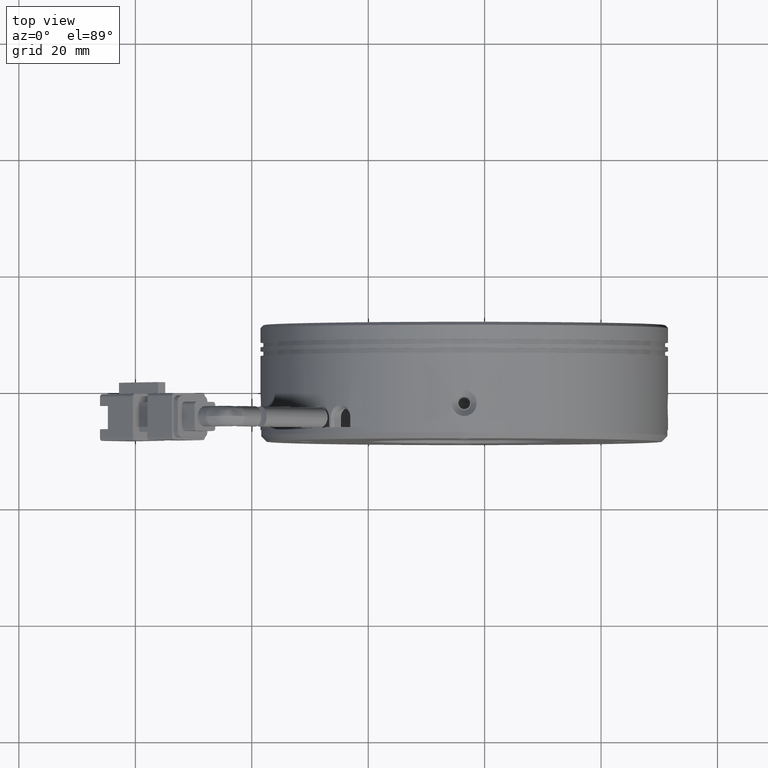
[diagram: clean part render]
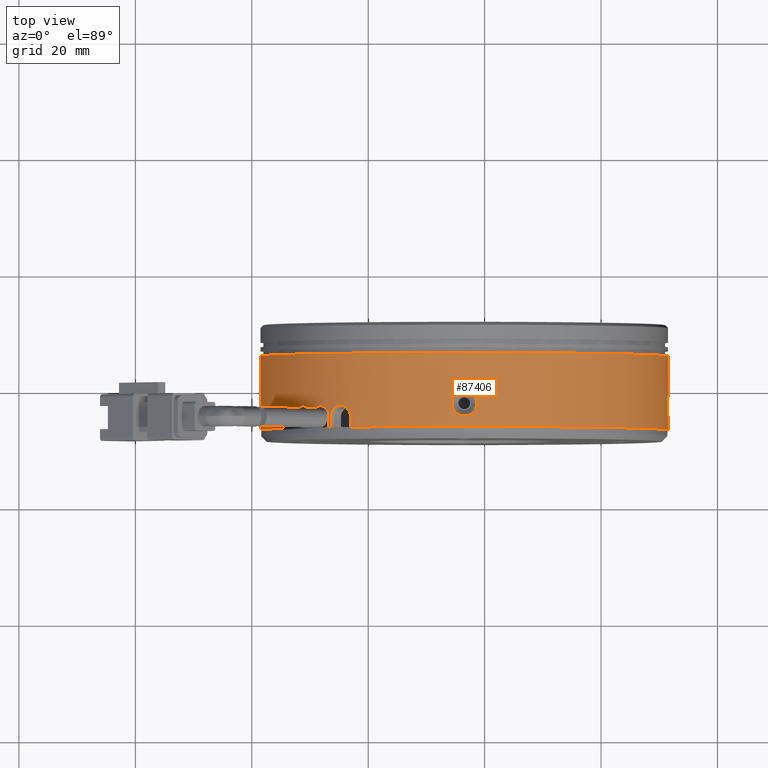
[diagram: same view with one face highlighted and labeled with its STEP entity id]
A machine part, top view. The second image highlights one B-rep face of the part: STEP entity #87406.
In plain terms, the highlighted cylindrical surface (partial cylindrical patch) has radius 35 mm, axis along (0, 1, 0).
Its self-contained STEP definition (entity closure, byte-faithful):
#275 = CARTESIAN_POINT ( 'NONE',  ( -1.364397213318255400, 37.07623868994505800, 34.93483207367803800 ) ) ;
#342 = CARTESIAN_POINT ( 'NONE',  ( -38.49835087485472900, 34.89094893977823400, 0.2844990879335367300 ) ) ;
#542 = CARTESIAN_POINT ( 'NONE',  ( -26.29906092009340000, 35.71675935869110000, 26.55504965282142700 ) ) ;
#572 = CARTESIAN_POINT ( 'NONE',  ( -23.05692204881608400, 33.07623868994505000, 29.02579290625166700 ) ) ;
#731 = CARTESIAN_POINT ( 'NONE',  ( -38.49500690506638300, 39.20384695216864700, 0.5610206150766298100 ) ) ;
#834 = CARTESIAN_POINT ( 'NONE',  ( -24.25735222048315600, 36.76992079441872400, 28.18008267164554300 ) ) ;
#964 = DIRECTION ( 'NONE',  ( -1.000000000000000000, 0.0000000000000000000, -1.942890293094023500E-016 ) ) ;
#1141 = CARTESIAN_POINT ( 'NONE',  ( -23.05650673183460600, 34.77623868994505300, 29.02607274416062200 ) ) ;
#1425 = VERTEX_POINT ( 'NONE', #10002 ) ;
#1772 = CARTESIAN_POINT ( 'NONE',  ( -1.377828845883924300, 36.79194204904494100, 34.93566040393197600 ) ) ;
#1800 = CARTESIAN_POINT ( 'NONE',  ( -29.61324911594615400, 35.44738323422608100, 23.30366487374871600 ) ) ;
#2078 = CARTESIAN_POINT ( 'NONE',  ( -3.638546594217164600, 34.87608461347451100, 35.00000911203947900 ) ) ;
#2107 = CARTESIAN_POINT ( 'NONE',  ( -27.86347176797479000, 36.77959478235775500, 25.12770389691147700 ) ) ;
#2171 = DIRECTION ( 'NONE',  ( -0.0000000000000000000, -1.000000000000000000, -0.0000000000000000000 ) ) ;
#2226 = CARTESIAN_POINT ( 'NONE',  ( -29.68517925304296100, 33.07623868994461700, 23.22274799373740700 ) ) ;
#2298 = CARTESIAN_POINT ( 'NONE',  ( 31.50077071290951400, 34.87623869003537200, 4.147485918937498800E-015 ) ) ;
#2383 = CARTESIAN_POINT ( 'NONE',  ( -5.634061360858559900, 36.79002064916819800, 34.93483207368844700 ) ) ;
#2413 = CARTESIAN_POINT ( 'NONE',  ( -26.72160634945139200, 34.91384702673369100, 26.18627891804307900 ) ) ;
#2611 = CARTESIAN_POINT ( 'NONE',  ( 31.47627070206805700, 35.33698274678562300, 1.314540449531120400 ) ) ;
#3102 = VERTEX_POINT ( 'NONE', #62279 ) ;
#3114 = EDGE_CURVE ( 'NONE', #50991, #41277, #45236, .T. ) ;
#3189 = CARTESIAN_POINT ( 'NONE',  ( -29.68531802590951700, 33.08657568895214500, 23.22259151275607900 ) ) ;
#3869 = AXIS2_PLACEMENT_3D ( 'NONE', #71705, #29762, #78761 ) ;
#3890 = CARTESIAN_POINT ( 'NONE',  ( -32.04697049621529500, 36.46043286356463400, 20.25009539567988900 ) ) ;
#4185 = CARTESIAN_POINT ( 'NONE',  ( -30.38817541865017800, 36.36958000379309700, 22.40523915192453700 ) ) ;
#4388 = ORIENTED_EDGE ( 'NONE', *, *, #48997, .T. ) ;
#4532 = VERTEX_POINT ( 'NONE', #82738 ) ;
#4634 = DIRECTION ( 'NONE',  ( -0.0000000000000000000, -1.000000000000000000, -0.0000000000000000000 ) ) ;
#4756 = DIRECTION ( 'NONE',  ( 0.0000000000000000000, 1.000000000000000000, 0.0000000000000000000 ) ) ;
#5154 = B_SPLINE_CURVE_WITH_KNOTS ( 'NONE', 3,
 ( #49874, #22621, #29623, #78648 ),
 .UNSPECIFIED., .F., .F.,
 ( 4, 4 ),
 ( 1.353093207250491300E-015, 4.511111109491530600E-005 ),
 .UNSPECIFIED. ) ;
#5174 = DIRECTION ( 'NONE',  ( -0.0000000000000000000, -1.000000000000000000, -0.0000000000000000000 ) ) ;
#5180 = ORIENTED_EDGE ( 'NONE', *, *, #88401, .T. ) ;
#5227 = VECTOR ( 'NONE', #5174, 1000.000000000000000 ) ;
#5346 = VERTEX_POINT ( 'NONE', #29322 ) ;
#6460 = ORIENTED_EDGE ( 'NONE', *, *, #65523, .T. ) ;
#6663 = CARTESIAN_POINT ( 'NONE',  ( -5.422920050273456900, 38.04038280663406400, 34.94713357074540000 ) ) ;
#6741 = ORIENTED_EDGE ( 'NONE', *, *, #43332, .T. ) ;
#6945 = CARTESIAN_POINT ( 'NONE',  ( 31.50077071290302700, 39.27623868985741500, 0.1431917151364814300 ) ) ;
#6969 = CARTESIAN_POINT ( 'NONE',  ( -2.804604219278020900, 39.16158596806590000, 34.99335202203368300 ) ) ;
#7047 = CARTESIAN_POINT ( 'NONE',  ( -38.43406136078915100, 37.07623868994505800, 2.134832073601135200 ) ) ;
#7365 = CARTESIAN_POINT ( 'NONE',  ( -38.49922928709050800, 34.87623869004255500, -1.373900992973631200E-014 ) ) ;
#7550 = CARTESIAN_POINT ( 'NONE',  ( -26.12825900235608500, 36.06718584694523600, 26.70080962140444200 ) ) ;
#7747 = CARTESIAN_POINT ( 'NONE',  ( -38.48635430840459300, 39.04742841710189100, 0.9580917013805144700 ) ) ;
#7854 = CARTESIAN_POINT ( 'NONE',  ( -23.94712327928421700, 36.60159261119267200, 28.40593523917219800 ) ) ;
#8787 = CARTESIAN_POINT ( 'NONE',  ( -1.471187954059558500, 36.37487891295896200, 34.94123322545146900 ) ) ;
#8811 = CARTESIAN_POINT ( 'NONE',  ( -29.49884825754492100, 35.81762564086962900, 23.43129763724226000 ) ) ;
#8837 = LINE ( 'NONE', #29852, #23034 ) ;
#8993 = DIRECTION ( 'NONE',  ( -0.0000000000000000000, -1.000000000000000000, 0.0000000000000000000 ) ) ;
#9098 = CARTESIAN_POINT ( 'NONE',  ( -4.059066451369793600, 34.94830758286238400, 34.99579616371983100 ) ) ;
#9103 = EDGE_CURVE ( 'NONE', #45470, #20864, #45839, .T. ) ;
#9126 = CARTESIAN_POINT ( 'NONE',  ( -27.58696348921920800, 36.63844654513134500, 25.39285473755884900 ) ) ;
#9304 = CARTESIAN_POINT ( 'NONE',  ( 31.50077071290951400, 34.87623869003545700, 0.1431489450146108700 ) ) ;
#9447 = B_SPLINE_CURVE_WITH_KNOTS ( 'NONE', 3,
 ( #9882, #51822, #65821, #23949, #72899, #30976, #79953 ),
 .UNSPECIFIED., .F., .F.,
 ( 4, 3, 4 ),
 ( 6.938893903907228400E-018, 1.636933097118977100E-005, 4.511106808455039700E-005 ),
 .UNSPECIFIED. ) ;
#9602 = CARTESIAN_POINT ( 'NONE',  ( 31.45924706194176000, 35.73625714219459600, 1.715529665180217400 ) ) ;
#9882 = CARTESIAN_POINT ( 'NONE',  ( -32.52504669713086800, 33.07623868994506500, 19.55765639535549700 ) ) ;
#9892 = EDGE_CURVE ( 'NONE', #65035, #76229, #59868, .T. ) ;
#9917 = CARTESIAN_POINT ( 'NONE',  ( -32.52504669713086800, 33.07623868994506500, 19.55765639535549700 ) ) ;
#10002 = CARTESIAN_POINT ( 'NONE',  ( -26.46626367548724800, 33.12134584970633000, 26.41051554593739300 ) ) ;
#10181 = CARTESIAN_POINT ( 'NONE',  ( -29.68546292176455700, 33.10161095143445900, 23.22242812564610400 ) ) ;
#10533 = VERTEX_POINT ( 'NONE', #87035 ) ;
#10897 = CARTESIAN_POINT ( 'NONE',  ( -31.68042534323328900, 36.76927883008723800, 20.75660625065443600 ) ) ;
#10946 = DIRECTION ( 'NONE',  ( 0.0000000000000000000, 1.000000000000000000, 0.0000000000000000000 ) ) ;
#11040 = ORIENTED_EDGE ( 'NONE', *, *, #22660, .T. ) ;
#11208 = CARTESIAN_POINT ( 'NONE',  ( -30.20071328280221200, 36.06846619860252900, 22.62823293957157100 ) ) ;
#11682 = DIRECTION ( 'NONE',  ( 0.0000000000000000000, 1.000000000000000000, 0.0000000000000000000 ) ) ;
#11718 = CARTESIAN_POINT ( 'NONE',  ( -26.72160380067638400, 34.77623868994505300, 26.18628117833375800 ) ) ;
#12511 = CARTESIAN_POINT ( 'NONE',  ( -38.49922928709050800, 34.87623869004255500, -1.373900992973631200E-014 ) ) ;
#12889 = CARTESIAN_POINT ( 'NONE',  ( -29.90983535261175800, 33.09124716020517100, 22.96693029918071700 ) ) ;
#13346 = EDGE_CURVE ( 'NONE', #35224, #49271, #40566, .T. ) ;
#13687 = CARTESIAN_POINT ( 'NONE',  ( 31.43961390371789100, 37.63910374056380400, 2.068319022800263300 ) ) ;
#13706 = CARTESIAN_POINT ( 'NONE',  ( -5.205920405684299400, 38.40523833648740700, 34.95844764762033200 ) ) ;
#13994 = DIRECTION ( 'NONE',  ( 0.0000000000000000000, 1.000000000000000000, 0.0000000000000000000 ) ) ;
#14008 = CARTESIAN_POINT ( 'NONE',  ( -2.418311699921419100, 38.97865895142625400, 34.98349673944768800 ) ) ;
#14081 = CARTESIAN_POINT ( 'NONE',  ( -38.44045986722378700, 36.37502306740583400, 2.028086359610374400 ) ) ;
#14307 = CARTESIAN_POINT ( 'NONE',  ( 31.50077071290951400, 49.23205631493804200, 4.147485918937592700E-015 ) ) ;
#14580 = CARTESIAN_POINT ( 'NONE',  ( -25.82974311901726900, 36.46406100834682500, 26.95158187246774200 ) ) ;
#14762 = CARTESIAN_POINT ( 'NONE',  ( -38.47472927624921400, 38.81549463309738700, 1.314540449526540500 ) ) ;
#14875 = CARTESIAN_POINT ( 'NONE',  ( -23.66895945501089200, 36.36599182774763500, 28.60405928037530300 ) ) ;
#15206 = DIRECTION ( 'NONE',  ( -1.000000000000000000, 0.0000000000000000000, -1.942890293094023500E-016 ) ) ;
#15304 = ORIENTED_EDGE ( 'NONE', *, *, #3114, .T. ) ;
#15476 = VECTOR ( 'NONE', #4634, 1000.000000000000000 ) ;
#15490 = EDGE_CURVE ( 'NONE', #3102, #71811, #66101, .T. ) ;
#15822 = CARTESIAN_POINT ( 'NONE',  ( -1.639681307294347500, 35.98650694867659900, 34.95065003424878100 ) ) ;
#15848 = CARTESIAN_POINT ( 'NONE',  ( -29.33588638927307800, 36.14895650311903100, 23.61094151400485300 ) ) ;
#16114 = CARTESIAN_POINT ( 'NONE',  ( -4.456000541674549200, 35.10426819026291400, 34.98716591107664400 ) ) ;
#16146 = CARTESIAN_POINT ( 'NONE',  ( -27.33232278789349200, 36.42581542357874700, 25.63194363915723500 ) ) ;
#16246 = FACE_OUTER_BOUND ( 'NONE', #60851, .T. ) ;
#16326 = AXIS2_PLACEMENT_3D ( 'NONE', #52915, #10946, #59865 ) ;
#16646 = CARTESIAN_POINT ( 'NONE',  ( 31.44200340998244800, 36.37491894454797100, 2.028049576826787400 ) ) ;
#16892 = CIRCLE ( 'NONE', #16326, 35.00000000000000700 ) ;
#16946 = CARTESIAN_POINT ( 'NONE',  ( -26.46589185543577800, 33.07623868994462400, 26.41083888239386500 ) ) ;
#17169 = CARTESIAN_POINT ( 'NONE',  ( -29.91005054073716700, 33.07623868994407000, 22.96668284071266100 ) ) ;
#17251 = CARTESIAN_POINT ( 'NONE',  ( -29.68551046542420800, 33.12134584970633000, 23.22237451358594700 ) ) ;
#17601 = EDGE_CURVE ( 'NONE', #86960, #36997, #33516, .T. ) ;
#17695 = LINE ( 'NONE', #67268, #15476 ) ;
#17957 = CARTESIAN_POINT ( 'NONE',  ( -31.43626894928663200, 36.86226258101288500, 21.08412894576470000 ) ) ;
#18241 = CIRCLE ( 'NONE', #43197, 35.00000000000000700 ) ;
#18245 = CARTESIAN_POINT ( 'NONE',  ( -26.46589185543577800, 33.07623868994462400, 26.41083888239386500 ) ) ;
#18248 = CARTESIAN_POINT ( 'NONE',  ( -30.05446377238097000, 35.71742489503624500, 22.79961660035935700 ) ) ;
#18542 = CARTESIAN_POINT ( 'NONE',  ( 31.50077071290951400, 45.77623868994505300, 4.147485918937592700E-015 ) ) ;
#19245 = EDGE_CURVE ( 'NONE', #71811, #50991, #85223, .T. ) ;
#19790 = CARTESIAN_POINT ( 'NONE',  ( -32.52532653127335000, 34.77623868994502500, 19.55724108281228600 ) ) ;
#20351 = B_SPLINE_CURVE_WITH_KNOTS ( 'NONE', 3,
 ( #34804, #70264, #42437, #572 ),
 .UNSPECIFIED., .F., .F.,
 ( 4, 4 ),
 ( 1.665352606875907700E-015, 4.511106800019388400E-005 ),
 .UNSPECIFIED. ) ;
#20402 = CARTESIAN_POINT ( 'NONE',  ( -5.634061360858810400, 37.07623868994505800, 34.93483207368843300 ) ) ;
#20684 = CARTESIAN_POINT ( 'NONE',  ( 31.44789942918606200, 38.04019290787036300, 1.923778371871071500 ) ) ;
#20709 = CARTESIAN_POINT ( 'NONE',  ( -4.824847784311986100, 38.82401066425628500, 34.97543131385661000 ) ) ;
#20768 = CARTESIAN_POINT ( 'NONE',  ( -38.43488934010948600, 36.79200188626543900, 2.121406078964621400 ) ) ;
#20864 = VERTEX_POINT ( 'NONE', #86727 ) ;
#21012 = CARTESIAN_POINT ( 'NONE',  ( -2.077610213242002200, 38.72350972449897500, 34.97125478826107800 ) ) ;
#21082 = CARTESIAN_POINT ( 'NONE',  ( -38.44987319850071800, 35.98671736355584700, 1.859661740656727300 ) ) ;
#21128 = AXIS2_PLACEMENT_3D ( 'NONE', #21904, #70877, #15206 ) ;
#21246 = B_SPLINE_CURVE_WITH_KNOTS ( 'NONE', 3,
 ( #29547, #71514, #85603, #43672, #1800, #50721, #8811, #57716, #15848, #64731, #22867, #71823, #29876, #78878, #36948, #85918, #43967, #2107, #51037, #9126, #58004, #16146, #65048, #23171, #72131, #30184, #79189, #37237, #86216, #44277, #2413, #51348 ),
 .UNSPECIFIED., .F., .F.,
 ( 4, 2, 2, 2, 2, 2, 2, 2, 2, 2, 2, 2, 2, 2, 2, 4 ),
 ( 0.0000000000000000000, 0.0004070252156231301800, 0.0008140504312462603500, 0.001221075646869390600, 0.001628100862492520700, 0.002442151293738760800, 0.002849176509361880900, 0.003256201724985000200, 0.003663226940608119500, 0.004070252156231238800, 0.004477277371854358100, 0.004884302587477477300, 0.005291327803100597500, 0.005698353018723716800, 0.006105378234346836100, 0.006512403449969954500 ),
 .UNSPECIFIED. ) ;
#21467 = CARTESIAN_POINT ( 'NONE',  ( -26.46626367548725500, 49.23205631493804200, 26.41051554593739300 ) ) ;
#21568 = CARTESIAN_POINT ( 'NONE',  ( -25.34433801059612200, 36.77240159372363600, 27.34607401877343600 ) ) ;
#21769 = CARTESIAN_POINT ( 'NONE',  ( -38.45770563612305900, 38.41622023768910300, 1.715529665173488100 ) ) ;
#21864 = CARTESIAN_POINT ( 'NONE',  ( -23.42917275770623000, 36.06601376351957100, 28.77157648209005500 ) ) ;
#21904 = CARTESIAN_POINT ( 'NONE',  ( -3.499229287090496400, 49.23205631493804200, -6.938893903907228400E-015 ) ) ;
#22617 = EDGE_CURVE ( 'NONE', #1425, #65035, #56294, .T. ) ;
#22621 = CARTESIAN_POINT ( 'NONE',  ( -26.72160380423087700, 33.10628297585962800, 26.18628117456815100 ) ) ;
#22660 = EDGE_CURVE ( 'NONE', #39158, #35224, #42983, .T. ) ;
#22831 = CARTESIAN_POINT ( 'NONE',  ( -1.881252523132536800, 35.63423702143155900, 34.96271823226722100 ) ) ;
#22864 = VERTEX_POINT ( 'NONE', #87275 ) ;
#22867 = CARTESIAN_POINT ( 'NONE',  ( -28.97946972464138300, 36.58691562346633900, 23.99626089325233000 ) ) ;
#22999 = EDGE_CURVE ( 'NONE', #86960, #49271, #62671, .T. ) ;
#23034 = VECTOR ( 'NONE', #85891, 1000.000000000000000 ) ;
#23095 = LINE ( 'NONE', #83466, #41685 ) ;
#23142 = CARTESIAN_POINT ( 'NONE',  ( -4.811760792018039200, 35.33546143960907000, 34.97557273294851400 ) ) ;
#23171 = CARTESIAN_POINT ( 'NONE',  ( -27.10975982623885700, 36.14850123577952000, 25.83703752585223500 ) ) ;
#23421 = CARTESIAN_POINT ( 'NONE',  ( -23.05650673256541000, 33.12134584970664300, 29.02607274384642700 ) ) ;
#23661 = CARTESIAN_POINT ( 'NONE',  ( 31.43643041587289100, 36.79198694049495100, 2.121412253103116100 ) ) ;
#23949 = CARTESIAN_POINT ( 'NONE',  ( -32.52521293538058000, 33.09260531730162600, 19.55740967636558700 ) ) ;
#24287 = LINE ( 'NONE', #49430, #51725 ) ;
#24663 = CARTESIAN_POINT ( 'NONE',  ( -32.51728035346624800, 35.05462126878820300, 19.56919790338977400 ) ) ;
#24666 = CIRCLE ( 'NONE', #89281, 35.00000000000000700 ) ;
#24948 = CARTESIAN_POINT ( 'NONE',  ( -31.18419236951034900, 36.87653280578354800, 21.41406245280689200 ) ) ;
#25240 = CARTESIAN_POINT ( 'NONE',  ( -26.46604826730417400, 33.08662152481653600, 26.41070286712597000 ) ) ;
#25245 = CARTESIAN_POINT ( 'NONE',  ( -29.95595561255761300, 35.32908356491977000, 22.91380406334933500 ) ) ;
#25660 = EDGE_CURVE ( 'NONE', #20864, #4532, #24287, .T. ) ;
#27563 = CIRCLE ( 'NONE', #3869, 35.00000000000000700 ) ;
#27708 = CARTESIAN_POINT ( 'NONE',  ( 31.45920961602619700, 38.40499250696495900, 1.706868790773296700 ) ) ;
#27728 = CARTESIAN_POINT ( 'NONE',  ( -4.198616899324378000, 39.15976580612436900, 34.99325075268621500 ) ) ;
#28044 = CARTESIAN_POINT ( 'NONE',  ( -1.794024483978147000, 38.40723138057352100, 34.95852016238821100 ) ) ;
#28115 = CARTESIAN_POINT ( 'NONE',  ( -38.46193766112087100, 35.63449119787739500, 1.618187548130787700 ) ) ;
#28302 = CARTESIAN_POINT ( 'NONE',  ( -26.46626084548775600, 34.91664351670698400, 26.41051800695320800 ) ) ;
#28487 = CARTESIAN_POINT ( 'NONE',  ( -38.49922928709050800, 39.27623868984756000, -1.373900992973624100E-014 ) ) ;
#28602 = B_SPLINE_CURVE_WITH_KNOTS ( 'NONE', 3,
 ( #82352, #47741, #12889, #61783 ),
 .UNSPECIFIED., .F., .F.,
 ( 4, 4 ),
 ( 1.360032055766997800E-015, 4.511100424450192200E-005 ),
 .UNSPECIFIED. ) ;
#28606 = CARTESIAN_POINT ( 'NONE',  ( -25.02331518822071700, 36.86371784935684600, 27.59950126062173200 ) ) ;
#28796 = CARTESIAN_POINT ( 'NONE',  ( -38.44046198416396700, 37.77755843533714900, 2.028049576817924300 ) ) ;
#28895 = CARTESIAN_POINT ( 'NONE',  ( -23.24214805060694300, 35.71650215980028500, 28.90017702221050700 ) ) ;
#28902 = LINE ( 'NONE', #46637, #66143 ) ;
#29124 = ORIENTED_EDGE ( 'NONE', *, *, #31066, .F. ) ;
#29322 = CARTESIAN_POINT ( 'NONE',  ( -5.634061360858810400, 37.07623868994505800, 34.93483207368843300 ) ) ;
#29363 = EDGE_CURVE ( 'NONE', #4532, #46551, #21246, .T. ) ;
#29547 = CARTESIAN_POINT ( 'NONE',  ( -29.68551046542420100, 34.77623868994506000, 23.22237451358595500 ) ) ;
#29623 = CARTESIAN_POINT ( 'NONE',  ( -26.72172872285236500, 33.09124674880856500, 26.18617039725548800 ) ) ;
#29762 = DIRECTION ( 'NONE',  ( -0.0000000000000000000, -1.000000000000000000, 0.0000000000000000000 ) ) ;
#29851 = CARTESIAN_POINT ( 'NONE',  ( -2.411786295882789600, 35.16127076750273500, 34.98405969625237300 ) ) ;
#29852 = CARTESIAN_POINT ( 'NONE',  ( -38.49922928709050800, 49.23205631493804200, -1.373900992973631200E-014 ) ) ;
#29876 = CARTESIAN_POINT ( 'NONE',  ( -28.62725496723145800, 36.77952667242654900, 24.36391439423145800 ) ) ;
#30152 = CARTESIAN_POINT ( 'NONE',  ( -5.117256481201883900, 35.63419414744073100, 34.96271800440749900 ) ) ;
#30184 = CARTESIAN_POINT ( 'NONE',  ( -26.93170683684961400, 35.82022912540372800, 25.99855481076118500 ) ) ;
#30383 = CARTESIAN_POINT ( 'NONE',  ( 31.49989311918675800, 34.89093892779393300, 0.2839471918921995200 ) ) ;
#30568 = ORIENTED_EDGE ( 'NONE', *, *, #65858, .T. ) ;
#30678 = CARTESIAN_POINT ( 'NONE',  ( 31.43560278660753600, 37.07623868994505800, 2.134832073611387000 ) ) ;
#30913 = CARTESIAN_POINT ( 'NONE',  ( 31.50077071290951400, 39.27623868985474300, 4.147485918937590400E-015 ) ) ;
#30976 = CARTESIAN_POINT ( 'NONE',  ( -32.52532652652679700, 33.11176543258063300, 19.55724108985694100 ) ) ;
#31066 = EDGE_CURVE ( 'NONE', #39158, #10533, #8837, .T. ) ;
#31707 = CARTESIAN_POINT ( 'NONE',  ( -32.46179790684570300, 35.46058335750046800, 19.65127662110356600 ) ) ;
#31864 = ORIENTED_EDGE ( 'NONE', *, *, #69286, .T. ) ;
#32025 = CARTESIAN_POINT ( 'NONE',  ( -30.92943324240927800, 36.81176510608359800, 21.73942184714806200 ) ) ;
#32311 = CARTESIAN_POINT ( 'NONE',  ( -26.46621055027218700, 33.10165680662448300, 26.41056174481128600 ) ) ;
#32315 = CARTESIAN_POINT ( 'NONE',  ( -29.90972952557649800, 34.91664101030320200, 22.96705199090525800 ) ) ;
#33466 = ORIENTED_EDGE ( 'NONE', *, *, #77425, .F. ) ;
#33516 = CIRCLE ( 'NONE', #75588, 35.00000000000000700 ) ;
#34301 = VECTOR ( 'NONE', #11682, 1000.000000000000000 ) ;
#34317 = ORIENTED_EDGE ( 'NONE', *, *, #22617, .T. ) ;
#34422 = EDGE_CURVE ( 'NONE', #58026, #10533, #18241, .T. ) ;
#34793 = CARTESIAN_POINT ( 'NONE',  ( 31.47618942203703800, 38.82374157385329700, 1.325940147550659100 ) ) ;
#34804 = CARTESIAN_POINT ( 'NONE',  ( -23.05650673256541000, 33.12134584970664300, 29.02607274384642700 ) ) ;
#34817 = CARTESIAN_POINT ( 'NONE',  ( -3.783482310473327700, 39.26154304773943000, 34.99912251806140500 ) ) ;
#35036 = VERTEX_POINT ( 'NONE', #23421 ) ;
#35110 = CARTESIAN_POINT ( 'NONE',  ( -1.575531328425882100, 38.04036387438655700, 34.94713316126452400 ) ) ;
#35184 = CARTESIAN_POINT ( 'NONE',  ( -38.48327565902823000, 35.16152695387018700, 1.087851395278404600 ) ) ;
#35224 = VERTEX_POINT ( 'NONE', #47233 ) ;
#35581 = CARTESIAN_POINT ( 'NONE',  ( -38.49922928709051500, 39.27623868984750300, 0.1431489450139444000 ) ) ;
#35687 = CARTESIAN_POINT ( 'NONE',  ( -24.69425828352930800, 36.87576055887231500, 27.85300707365549400 ) ) ;
#35884 = CARTESIAN_POINT ( 'NONE',  ( -38.43488899005446800, 37.36049043939159000, 2.121412253093250200 ) ) ;
#35994 = CARTESIAN_POINT ( 'NONE',  ( -23.11580020594365000, 35.32861478778553300, 28.98604753265588800 ) ) ;
#36308 = CARTESIAN_POINT ( 'NONE',  ( -1.364397213318255400, 37.07623868994505800, 34.93483207367803800 ) ) ;
#36916 = CARTESIAN_POINT ( 'NONE',  ( -2.936595378071500800, 34.94903509054933700, 34.99575431248762000 ) ) ;
#36948 = CARTESIAN_POINT ( 'NONE',  ( -28.34480495088970600, 36.84483300927527000, 24.65189339179814400 ) ) ;
#36986 = B_SPLINE_CURVE_WITH_KNOTS ( 'NONE', 3,
 ( #36308, #85571, #1772, #50692, #8787, #57682, #15822, #64700, #22831, #71791, #29851, #78847, #36916, #85889, #43940, #2078, #51008, #9098, #57979, #16114, #65015, #23142, #72100, #30152, #79161, #37214, #86189, #44243, #2383, #51309 ),
 .UNSPECIFIED., .F., .F.,
 ( 4, 2, 2, 2, 2, 2, 2, 2, 2, 2, 2, 2, 2, 2, 4 ),
 ( 0.0000000000000000000, 0.0004250800221634180100, 0.0008501600443268360200, 0.001275240066490254000, 0.001700320088653672000, 0.002550480132980507200, 0.002975560155143929700, 0.003400640177307351900, 0.003825720199470774000, 0.004250800221634197000, 0.004675880243797618700, 0.005100960265961042100, 0.005526040288124463800, 0.005951120310287887200, 0.006801280354614730600 ),
 .UNSPECIFIED. ) ;
#36997 = VERTEX_POINT ( 'NONE', #9917 ) ;
#37214 = CARTESIAN_POINT ( 'NONE',  ( -5.357276392957104800, 35.98383058546797000, 34.95072983954757700 ) ) ;
#37237 = CARTESIAN_POINT ( 'NONE',  ( -26.80295710797288700, 35.44763967702675000, 26.11396385043589400 ) ) ;
#37309 = CARTESIAN_POINT ( 'NONE',  ( -26.72160380121760800, 33.12134584970657900, 26.18628117801718200 ) ) ;
#37433 = CARTESIAN_POINT ( 'NONE',  ( 31.49404093390571200, 34.99235989151952000, 0.6984956733280589500 ) ) ;
#38215 = ORIENTED_EDGE ( 'NONE', *, *, #15490, .T. ) ;
#38300 = CARTESIAN_POINT ( 'NONE',  ( 31.50077071290951400, 34.87623869003537200, 4.147485918937498800E-015 ) ) ;
#38734 = CARTESIAN_POINT ( 'NONE',  ( -32.36150633573582500, 35.83676746228533700, 19.79836595880937000 ) ) ;
#39032 = CARTESIAN_POINT ( 'NONE',  ( -30.68439286270962900, 36.67014008718261700, 22.04503649556580300 ) ) ;
#39158 = VERTEX_POINT ( 'NONE', #88511 ) ;
#39336 = CARTESIAN_POINT ( 'NONE',  ( -23.05650673183460600, 49.23205631493804200, 29.02607274416062200 ) ) ;
#39338 = CARTESIAN_POINT ( 'NONE',  ( -26.46626367548724800, 33.12134584970633000, 26.41051554593739300 ) ) ;
#40566 = B_SPLINE_CURVE_WITH_KNOTS ( 'NONE', 3,
 ( #7047, #83835, #20768, #55975, #14081, #62972, #21082, #70042, #28115, #77085, #35184, #84153, #42222, #342, #49251, #7365 ),
 .UNSPECIFIED., .F., .F.,
 ( 4, 2, 2, 2, 2, 2, 2, 4 ),
 ( 0.01017846778330741700, 0.01060262017243397500, 0.01102677256156053100, 0.01145092495068708900, 0.01187507733981364700, 0.01272338211806676100, 0.01314753450719331400, 0.01357168689631986700 ),
 .UNSPECIFIED. ) ;
#40594 = ORIENTED_EDGE ( 'NONE', *, *, #48218, .T. ) ;
#41277 = VERTEX_POINT ( 'NONE', #30913 ) ;
#41417 = ORIENTED_EDGE ( 'NONE', *, *, #9103, .T. ) ;
#41510 = CARTESIAN_POINT ( 'NONE',  ( 31.43560278659839100, 37.21930652079965500, 2.134832073615021000 ) ) ;
#41529 = CARTESIAN_POINT ( 'NONE',  ( -5.620629728297060100, 37.36053533084530200, 34.93566040393197600 ) ) ;
#41685 = VECTOR ( 'NONE', #13994, 1000.000000000000000 ) ;
#41822 = CARTESIAN_POINT ( 'NONE',  ( 31.49401059829447300, 39.15957240098404700, 0.6999233007469922700 ) ) ;
#41845 = CARTESIAN_POINT ( 'NONE',  ( -3.359911979963832600, 39.27639276641561100, 35.00000911203947900 ) ) ;
#42150 = CARTESIAN_POINT ( 'NONE',  ( -1.364397213318255400, 37.36241324350477600, 34.93483207367803800 ) ) ;
#42222 = CARTESIAN_POINT ( 'NONE',  ( -38.49497207100335300, 34.94923540123001300, 0.5634169400629744900 ) ) ;
#42274 = EDGE_LOOP ( 'NONE', ( #6741, #4388 ) ) ;
#42408 = CARTESIAN_POINT ( 'NONE',  ( -26.38184856767035700, 35.46081790309658300, 26.48374443724160400 ) ) ;
#42437 = CARTESIAN_POINT ( 'NONE',  ( -23.05664565034080800, 33.09124664477191400, 29.02597914489887600 ) ) ;
#42498 = ORIENTED_EDGE ( 'NONE', *, *, #84595, .T. ) ;
#42605 = CARTESIAN_POINT ( 'NONE',  ( -38.49835169336775200, 39.26153845208899200, 0.2839471918912897000 ) ) ;
#42713 = ORIENTED_EDGE ( 'NONE', *, *, #72796, .T. ) ;
#42716 = CARTESIAN_POINT ( 'NONE',  ( -24.36411048212180900, 36.80898341746802100, 28.10116128370383800 ) ) ;
#42820 = DIRECTION ( 'NONE',  ( 0.0000000000000000000, 1.000000000000000000, 0.0000000000000000000 ) ) ;
#42867 = VERTEX_POINT ( 'NONE', #37309 ) ;
#42891 = CARTESIAN_POINT ( 'NONE',  ( -38.43406136078915100, 37.07623868994505800, 2.134832073601135200 ) ) ;
#42983 = B_SPLINE_CURVE_WITH_KNOTS ( 'NONE', 3,
 ( #28487, #35581, #42605, #731, #49651, #7747, #56649, #14762, #63659, #21769, #70742, #28796, #77793, #35884, #84823, #42891 ),
 .UNSPECIFIED., .F., .F.,
 ( 4, 2, 2, 2, 2, 2, 2, 4 ),
 ( 0.006786052840648299100, 0.007210104708480689200, 0.007634156576313079300, 0.008058208444145469400, 0.008482260311977860400, 0.009330364047642638800, 0.009754415915475028000, 0.01017846778330741700 ),
 .UNSPECIFIED. ) ;
#43009 = CARTESIAN_POINT ( 'NONE',  ( -23.05650970498405500, 34.91667299212227200, 29.02607074090276400 ) ) ;
#43197 = AXIS2_PLACEMENT_3D ( 'NONE', #44032, #2171, #51103 ) ;
#43332 = EDGE_CURVE ( 'NONE', #61008, #5346, #36986, .T. ) ;
#43450 = VECTOR ( 'NONE', #53455, 1000.000000000000000 ) ;
#43672 = CARTESIAN_POINT ( 'NONE',  ( -29.64046438720464500, 35.31517709525490300, 23.27308654501770100 ) ) ;
#43940 = CARTESIAN_POINT ( 'NONE',  ( -3.355370643074829100, 34.87639525717587900, 34.99999074064810900 ) ) ;
#43967 = CARTESIAN_POINT ( 'NONE',  ( -28.05440875344324400, 36.83167715362536400, 24.94115025762434400 ) ) ;
#44032 = CARTESIAN_POINT ( 'NONE',  ( -3.499229287090496400, 45.77623868994505300, -6.938893903907228400E-015 ) ) ;
#44243 = CARTESIAN_POINT ( 'NONE',  ( -5.579426259338808900, 36.50621998542190000, 34.93828416888767000 ) ) ;
#44277 = CARTESIAN_POINT ( 'NONE',  ( -26.73216544170527000, 35.05156490842850300, 26.17692534184958600 ) ) ;
#44486 = CARTESIAN_POINT ( 'NONE',  ( 31.48425830003619900, 35.17396811425491900, 1.081301219104309900 ) ) ;
#44628 = B_SPLINE_CURVE_WITH_KNOTS ( 'NONE', 3,
 ( #20402, #69362, #41529, #90510, #48587, #6663, #55636, #13706, #62592, #20709, #69669, #27728, #76702, #34817, #83766, #41845, #90808, #48893, #6969, #55896, #14008, #62900, #21012, #69967, #28044, #77020, #35110, #84077, #42150, #275 ),
 .UNSPECIFIED., .F., .F.,
 ( 4, 2, 2, 2, 2, 2, 2, 2, 2, 2, 2, 2, 2, 2, 4 ),
 ( 0.006801280354614730600, 0.007226328082781620700, 0.007651375810948510800, 0.008076423539115400900, 0.008501471267282290100, 0.009351566723616072000, 0.009776614451782964600, 0.01020166217994985600, 0.01062670990811674800, 0.01105175763628364100, 0.01147680536445053200, 0.01190185309261742500, 0.01232690082078431700, 0.01275194854895121000, 0.01360204400528499500 ),
 .UNSPECIFIED. ) ;
#44691 = CYLINDRICAL_SURFACE ( 'NONE', #21128, 35.00000000000000700 ) ;
#45053 = CARTESIAN_POINT ( 'NONE',  ( -29.68525516250278800, 33.08140695311698900, 23.22266239829805600 ) ) ;
#45236 = B_SPLINE_CURVE_WITH_KNOTS ( 'NONE', 3,
 ( #55612, #41510, #76378, #13687, #62566, #20684, #69647, #27708, #76673, #34793, #83747, #41822, #90784, #48871, #6945, #55878 ),
 .UNSPECIFIED., .F., .F.,
 ( 4, 2, 2, 2, 2, 2, 2, 4 ),
 ( -0.003393637960554932600, -0.002969433215485605500, -0.002545228470416278900, -0.002121023725346952300, -0.001696818980277625200, -0.0008484094901389563900, -0.0004242047450696219600, -2.875304161431557800E-016 ),
 .UNSPECIFIED. ) ;
#45470 = VERTEX_POINT ( 'NONE', #2226 ) ;
#45486 = CARTESIAN_POINT ( 'NONE',  ( -26.46597744918592500, 33.08142987498360600, 26.41076445072638600 ) ) ;
#45489 = CARTESIAN_POINT ( 'NONE',  ( -32.52532439524604500, 34.91665560219384200, 19.55724425302102500 ) ) ;
#45785 = CARTESIAN_POINT ( 'NONE',  ( -32.21890749124506200, 36.17245694832277500, 20.00475085496275400 ) ) ;
#45839 = B_SPLINE_CURVE_WITH_KNOTS ( 'NONE', 3,
 ( #79947, #45053, #3189, #52128, #10181, #59086, #17251 ),
 .UNSPECIFIED., .F., .F.,
 ( 4, 3, 4 ),
 ( 7.632783294297951200E-017, 1.550858785957242700E-005, 4.511111130278940200E-005 ),
 .UNSPECIFIED. ) ;
#46081 = CARTESIAN_POINT ( 'NONE',  ( -30.45768874105179300, 36.45556069038318000, 22.32162571278679800 ) ) ;
#46139 = VERTEX_POINT ( 'NONE', #80095 ) ;
#46551 = VERTEX_POINT ( 'NONE', #11718 ) ;
#46637 = CARTESIAN_POINT ( 'NONE',  ( 31.50077071290951400, 49.23205631493804200, 4.147485918937592700E-015 ) ) ;
#47053 = CARTESIAN_POINT ( 'NONE',  ( -29.90972720879264200, 49.23205631493804200, 22.96705465504375000 ) ) ;
#47233 = CARTESIAN_POINT ( 'NONE',  ( -38.43406136078915100, 37.07623868994505800, 2.134832073601135200 ) ) ;
#47251 = VERTEX_POINT ( 'NONE', #19790 ) ;
#47741 = CARTESIAN_POINT ( 'NONE',  ( -29.90972721175718300, 33.10628337847124700, 22.96705465094409600 ) ) ;
#48218 = EDGE_CURVE ( 'NONE', #36997, #65497, #9447, .T. ) ;
#48252 = VERTEX_POINT ( 'NONE', #16946 ) ;
#48587 = CARTESIAN_POINT ( 'NONE',  ( -5.527270620121446300, 37.77759846693115300, 34.94123322545148400 ) ) ;
#48871 = CARTESIAN_POINT ( 'NONE',  ( 31.49989230067373200, 39.26152844011900100, 0.2844990879349596500 ) ) ;
#48893 = CARTESIAN_POINT ( 'NONE',  ( -2.939392122811227600, 39.20416979702773100, 34.99579616371984500 ) ) ;
#48997 = EDGE_CURVE ( 'NONE', #5346, #61008, #44628, .T. ) ;
#49251 = CARTESIAN_POINT ( 'NONE',  ( -38.49922928707955800, 34.87623869003801500, 0.1431740422147703400 ) ) ;
#49271 = VERTEX_POINT ( 'NONE', #12511 ) ;
#49430 = CARTESIAN_POINT ( 'NONE',  ( -29.68551046542420500, 49.23205631493804200, 23.22237451358594700 ) ) ;
#49445 = CARTESIAN_POINT ( 'NONE',  ( -26.24836353593273900, 35.83800854358864300, 26.59855468293363100 ) ) ;
#49651 = CARTESIAN_POINT ( 'NONE',  ( -38.49249950808673800, 39.16011748836337600, 0.6984956733258577100 ) ) ;
#49751 = CARTESIAN_POINT ( 'NONE',  ( -24.04852402474949000, 36.66623140220474400, 28.33272335804379700 ) ) ;
#49874 = CARTESIAN_POINT ( 'NONE',  ( -26.72160380121760800, 33.12134584970657900, 26.18628117801718200 ) ) ;
#50211 = ORIENTED_EDGE ( 'NONE', *, *, #9892, .T. ) ;
#50692 = CARTESIAN_POINT ( 'NONE',  ( -1.430938378591527700, 36.51325634582809000, 34.93884486368479300 ) ) ;
#50721 = CARTESIAN_POINT ( 'NONE',  ( -29.54231147251996200, 35.69855545425129900, 23.38291466975027100 ) ) ;
#50908 = CARTESIAN_POINT ( 'NONE',  ( -3.499229287090496400, 33.07623868994505000, -6.938893903907228400E-015 ) ) ;
#50991 = VERTEX_POINT ( 'NONE', #69053 ) ;
#51008 = CARTESIAN_POINT ( 'NONE',  ( -3.782198218099664300, 34.89081226548658800, 34.99912992300264100 ) ) ;
#51037 = CARTESIAN_POINT ( 'NONE',  ( -27.76993405353088200, 36.74103152869096100, 25.21802729904648600 ) ) ;
#51103 = DIRECTION ( 'NONE',  ( -1.000000000000000000, 0.0000000000000000000, -1.942890293094023500E-016 ) ) ;
#51309 = CARTESIAN_POINT ( 'NONE',  ( -5.634061360858810400, 37.07623868994505800, 34.93483207368843300 ) ) ;
#51348 = CARTESIAN_POINT ( 'NONE',  ( -26.72160380067638400, 34.77623868994505300, 26.18628117833375800 ) ) ;
#51539 = CARTESIAN_POINT ( 'NONE',  ( 31.47196835853760500, 35.43029536651063400, 1.422976774197618700 ) ) ;
#51725 = VECTOR ( 'NONE', #70838, 1000.000000000000000 ) ;
#51822 = CARTESIAN_POINT ( 'NONE',  ( -32.52511439086308100, 33.08169378863010500, 19.55755593004963400 ) ) ;
#51987 = EDGE_CURVE ( 'NONE', #46551, #42867, #17695, .T. ) ;
#52128 = CARTESIAN_POINT ( 'NONE',  ( -29.68536783976339400, 33.09174467303469000, 23.22253534177989900 ) ) ;
#52255 = CARTESIAN_POINT ( 'NONE',  ( -32.52532653127335000, 34.77623868994502500, 19.55724108281228600 ) ) ;
#52868 = CARTESIAN_POINT ( 'NONE',  ( -31.90791523299462500, 36.61451122822583700, 20.44535692094542900 ) ) ;
#52915 = CARTESIAN_POINT ( 'NONE',  ( -3.499229287090496400, 33.07623868994505000, -6.938893903907228400E-015 ) ) ;
#53168 = CARTESIAN_POINT ( 'NONE',  ( -30.25864505335594100, 36.17448260794892400, 22.55978353994103700 ) ) ;
#53410 = ORIENTED_EDGE ( 'NONE', *, *, #25660, .T. ) ;
#53455 = DIRECTION ( 'NONE',  ( -0.0000000000000000000, -1.000000000000000000, -0.0000000000000000000 ) ) ;
#55612 = CARTESIAN_POINT ( 'NONE',  ( 31.43560278660753600, 37.07623868994505800, 2.134832073611387000 ) ) ;
#55636 = CARTESIAN_POINT ( 'NONE',  ( -5.358777266886664700, 38.16597043121349500, 34.95065003424877400 ) ) ;
#55878 = CARTESIAN_POINT ( 'NONE',  ( 31.50077071290951400, 39.27623868985474300, 4.147485918937590400E-015 ) ) ;
#55896 = CARTESIAN_POINT ( 'NONE',  ( -2.542458032506417000, 39.04820918962717300, 34.98716591107665200 ) ) ;
#55975 = CARTESIAN_POINT ( 'NONE',  ( -38.43807247789946000, 36.51337363932884700, 2.068319022790498200 ) ) ;
#56160 = B_SPLINE_CURVE_WITH_KNOTS ( 'NONE', 3,
 ( #52255, #45489, #24663, #73625, #31707, #80698, #38734, #87704, #45785, #3890, #52868, #10897, #59817, #17957, #66824, #24948, #73921, #32025, #80988, #39032, #88018, #46081, #4185, #53168, #11208, #60133, #18248, #67122, #25245, #74231, #32315, #81280 ),
 .UNSPECIFIED., .F., .F.,
 ( 4, 2, 2, 2, 2, 2, 2, 2, 2, 2, 2, 2, 2, 2, 2, 4 ),
 ( 0.0000000000000000000, 0.0004152824789865322900, 0.0008305649579730645900, 0.001245847436959597000, 0.001661129915946129200, 0.002491694873919179700, 0.002906977352905696700, 0.003322259831892214100, 0.003737542310878725100, 0.004152824789865236000, 0.004568107268851747400, 0.004983389747838257900, 0.005398672226824768400, 0.005813954705811279700, 0.006229237184797791100, 0.006644519663784301600 ),
 .UNSPECIFIED. ) ;
#56204 = DIRECTION ( 'NONE',  ( 0.0000000000000000000, 1.000000000000000000, 0.0000000000000000000 ) ) ;
#56294 = LINE ( 'NONE', #21467, #81547 ) ;
#56445 = CARTESIAN_POINT ( 'NONE',  ( -26.05854710226186900, 36.17493969649536500, 26.75980349461939800 ) ) ;
#56649 = CARTESIAN_POINT ( 'NONE',  ( -38.48271687421729600, 38.97850926562809100, 1.081301219100581300 ) ) ;
#56757 = CARTESIAN_POINT ( 'NONE',  ( -23.75789722870843300, 36.45171790888784400, 28.54119651940505500 ) ) ;
#57682 = CARTESIAN_POINT ( 'NONE',  ( -1.575538523907559400, 36.11209457325604400, 34.94713357074541400 ) ) ;
#57716 = CARTESIAN_POINT ( 'NONE',  ( -29.39579181623729600, 36.04285887621468000, 23.54514694683041800 ) ) ;
#57890 = DIRECTION ( 'NONE',  ( 1.000000000000000000, 0.0000000000000000000, 1.942890293094023700E-016 ) ) ;
#57924 = ORIENTED_EDGE ( 'NONE', *, *, #82384, .T. ) ;
#57979 = CARTESIAN_POINT ( 'NONE',  ( -4.193854354902994100, 34.99089141182425100, 34.99335202203370400 ) ) ;
#58004 = CARTESIAN_POINT ( 'NONE',  ( -27.49805027081105600, 36.57435920577491100, 25.47684187512815900 ) ) ;
#58026 = VERTEX_POINT ( 'NONE', #18542 ) ;
#58526 = CARTESIAN_POINT ( 'NONE',  ( 31.45084846215306800, 35.98093638822206900, 1.871623688163358300 ) ) ;
#58802 = LINE ( 'NONE', #47053, #5227 ) ;
#59086 = CARTESIAN_POINT ( 'NONE',  ( -29.68551046036887800, 33.11147853065057900, 23.22237451928647200 ) ) ;
#59817 = CARTESIAN_POINT ( 'NONE',  ( -31.60007463868275200, 36.80919942385151700, 20.86531018256495400 ) ) ;
#59865 = DIRECTION ( 'NONE',  ( -1.000000000000000000, 0.0000000000000000000, -1.942890293094023500E-016 ) ) ;
#59868 = B_SPLINE_CURVE_WITH_KNOTS ( 'NONE', 3,
 ( #77289, #28302, #70232, #84325, #42408, #542, #49445, #7550, #56445, #14580, #63467, #21568, #70548, #28606, #77604, #35687, #84641, #42716, #834, #49751, #7854, #56757, #14875, #63762, #21864, #70850, #28895, #77899, #35994, #84941, #43009, #1141 ),
 .UNSPECIFIED., .F., .F.,
 ( 4, 2, 2, 2, 2, 2, 2, 2, 2, 2, 2, 2, 2, 2, 2, 4 ),
 ( 0.0000000000000000000, 0.0004152412882299011100, 0.0008304825764598022100, 0.001245723864689703500, 0.001660965152919604400, 0.002491447729379407100, 0.002906689017609318600, 0.003321930305839230500, 0.003737171594069141600, 0.004152412882299052700, 0.004567654170528964200, 0.004982895458758875700, 0.005398136746988788100, 0.005813378035218699600, 0.006228619323448610300, 0.006643860611678522600 ),
 .UNSPECIFIED. ) ;
#60133 = CARTESIAN_POINT ( 'NONE',  ( -30.09884793005326700, 35.84071393895220600, 22.74788916778230400 ) ) ;
#60273 = CARTESIAN_POINT ( 'NONE',  ( -23.05650673183460600, 34.77623868994505300, 29.02607274416062200 ) ) ;
#60566 = CARTESIAN_POINT ( 'NONE',  ( -38.49922928709050800, 49.23205631493804200, -1.373900992973631200E-014 ) ) ;
#60851 = EDGE_LOOP ( 'NONE', ( #31864, #38215, #87364, #15304, #57924, #68545, #29124, #11040, #80957, #87218, #82121, #40594, #6460, #42713, #42498, #5180, #75442, #41417, #53410, #89328, #77503, #87435, #33466, #30568, #34317, #50211, #63374, #61000 ) ) ;
#60982 = CARTESIAN_POINT ( 'NONE',  ( -29.90972720879264200, 34.77623868994502500, 22.96705465504375000 ) ) ;
#61000 = ORIENTED_EDGE ( 'NONE', *, *, #78375, .T. ) ;
#61008 = VERTEX_POINT ( 'NONE', #81193 ) ;
#61783 = CARTESIAN_POINT ( 'NONE',  ( -29.91005054073716700, 33.07623868994407000, 22.96668284071266100 ) ) ;
#62279 = CARTESIAN_POINT ( 'NONE',  ( 31.50077071290951400, 33.07623868994505000, 4.147485918937592700E-015 ) ) ;
#62566 = CARTESIAN_POINT ( 'NONE',  ( 31.44200129304226000, 37.77745431248731500, 2.028086359619889500 ) ) ;
#62592 = CARTESIAN_POINT ( 'NONE',  ( -5.117206051048472500, 38.51824035845854900, 34.96271823226722800 ) ) ;
#62671 = LINE ( 'NONE', #60566, #34301 ) ;
#62900 = CARTESIAN_POINT ( 'NONE',  ( -2.186697782162971400, 38.81701594028107400, 34.97557273294851400 ) ) ;
#62972 = CARTESIAN_POINT ( 'NONE',  ( -38.44635800336753600, 36.11228447202373100, 1.923778371862195900 ) ) ;
#63374 = ORIENTED_EDGE ( 'NONE', *, *, #87700, .T. ) ;
#63467 = CARTESIAN_POINT ( 'NONE',  ( -25.64489395139997900, 36.61846460030054100, 27.10416377798844700 ) ) ;
#63659 = CARTESIAN_POINT ( 'NONE',  ( -38.47042693271882300, 38.72218201337261000, 1.422976774192378900 ) ) ;
#63762 = CARTESIAN_POINT ( 'NONE',  ( -23.50336516431369600, 36.17173875666809800, 28.72011090103126600 ) ) ;
#64281 = VERTEX_POINT ( 'NONE', #60982 ) ;
#64700 = CARTESIAN_POINT ( 'NONE',  ( -1.792538168496689500, 35.74723904340273600, 34.95844764762033900 ) ) ;
#64731 = CARTESIAN_POINT ( 'NONE',  ( -29.13898031813537400, 36.43399729829361200, 23.82521363262265600 ) ) ;
#65015 = CARTESIAN_POINT ( 'NONE',  ( -4.580146874259596300, 35.17381842846386800, 34.98349673944768100 ) ) ;
#65035 = VERTEX_POINT ( 'NONE', #84137 ) ;
#65048 = CARTESIAN_POINT ( 'NONE',  ( -27.25449831927776100, 36.34085957950461000, 25.70402407524467100 ) ) ;
#65497 = VERTEX_POINT ( 'NONE', #90798 ) ;
#65523 = EDGE_CURVE ( 'NONE', #65497, #47251, #23095, .T. ) ;
#65543 = CARTESIAN_POINT ( 'NONE',  ( 31.43961742061734200, 36.51311142837625600, 2.068260033015473000 ) ) ;
#65821 = CARTESIAN_POINT ( 'NONE',  ( -32.52516980470208100, 33.08714941961366000, 19.55747368844025800 ) ) ;
#65858 = EDGE_CURVE ( 'NONE', #48252, #1425, #83723, .T. ) ;
#66101 = LINE ( 'NONE', #14307, #84744 ) ;
#66143 = VECTOR ( 'NONE', #4756, 1000.000000000000000 ) ;
#66824 = CARTESIAN_POINT ( 'NONE',  ( -31.35310266635988400, 36.87569678694518400, 21.19389037858061500 ) ) ;
#67122 = CARTESIAN_POINT ( 'NONE',  ( -29.98302609540985100, 35.46114222802624000, 22.88255891083416000 ) ) ;
#67268 = CARTESIAN_POINT ( 'NONE',  ( -26.72160380067638400, 49.23205631493804200, 26.18628117833375800 ) ) ;
#68545 = ORIENTED_EDGE ( 'NONE', *, *, #34422, .T. ) ;
#69053 = CARTESIAN_POINT ( 'NONE',  ( 31.43560278660753600, 37.07623868994505800, 2.134832073611387000 ) ) ;
#69286 = EDGE_CURVE ( 'NONE', #46139, #3102, #16892, .T. ) ;
#69362 = CARTESIAN_POINT ( 'NONE',  ( -5.634061360858937400, 37.21933683811357000, 34.93483207368843300 ) ) ;
#69647 = CARTESIAN_POINT ( 'NONE',  ( 31.45141462431927300, 38.16576001633865200, 1.859661740665222100 ) ) ;
#69669 = CARTESIAN_POINT ( 'NONE',  ( -4.586672278298232500, 38.99120661238733700, 34.98405969625235200 ) ) ;
#69967 = CARTESIAN_POINT ( 'NONE',  ( -1.881202092979125600, 38.51828323244939200, 34.96271800440749900 ) ) ;
#70042 = CARTESIAN_POINT ( 'NONE',  ( -38.45766819020756300, 35.74748487293023700, 1.706868790765627900 ) ) ;
#70232 = CARTESIAN_POINT ( 'NONE',  ( -26.45557192205593100, 35.05463610450787100, 26.41982405724736100 ) ) ;
#70264 = CARTESIAN_POINT ( 'NONE',  ( -23.05650673650320900, 33.10628284262292500, 29.02607274036124700 ) ) ;
#70442 = DIRECTION ( 'NONE',  ( 0.0000000000000000000, 1.000000000000000000, 0.0000000000000000000 ) ) ;
#70548 = CARTESIAN_POINT ( 'NONE',  ( -25.23857229104088500, 36.81181663273785200, 27.43026994892478500 ) ) ;
#70742 = CARTESIAN_POINT ( 'NONE',  ( -38.44930703633446700, 38.17154099166220500, 1.871623688155621200 ) ) ;
#70838 = DIRECTION ( 'NONE',  ( 0.0000000000000000000, 1.000000000000000000, 0.0000000000000000000 ) ) ;
#70850 = CARTESIAN_POINT ( 'NONE',  ( -23.29888898806387900, 35.83917091028487100, 28.86138831955847200 ) ) ;
#70877 = DIRECTION ( 'NONE',  ( 0.0000000000000000000, 1.000000000000000000, 0.0000000000000000000 ) ) ;
#71514 = CARTESIAN_POINT ( 'NONE',  ( -29.68550806380132200, 34.91384285647574600, 23.22237722173160500 ) ) ;
#71705 = CARTESIAN_POINT ( 'NONE',  ( -3.499229287090496400, 33.07623868994505000, -6.938893903907228400E-015 ) ) ;
#71791 = CARTESIAN_POINT ( 'NONE',  ( -2.173610789869039600, 35.32846671563379500, 34.97543131385659600 ) ) ;
#71811 = VERTEX_POINT ( 'NONE', #38300 ) ;
#71823 = CARTESIAN_POINT ( 'NONE',  ( -28.71899431193891800, 36.74013805675299700, 24.26889469041680100 ) ) ;
#72100 = CARTESIAN_POINT ( 'NONE',  ( -4.920848360938979500, 35.42896765539112600, 34.97125478826109200 ) ) ;
#72131 = CARTESIAN_POINT ( 'NONE',  ( -27.04517305196541300, 36.04416105285866200, 25.89583728303579600 ) ) ;
#72620 = CARTESIAN_POINT ( 'NONE',  ( 31.43560278659842700, 36.93322241865560300, 2.134832073614672900 ) ) ;
#72796 = EDGE_CURVE ( 'NONE', #47251, #64281, #56160, .T. ) ;
#72899 = CARTESIAN_POINT ( 'NONE',  ( -32.52528866417332400, 33.10218477581542400, 19.55729728404286000 ) ) ;
#73625 = CARTESIAN_POINT ( 'NONE',  ( -32.48572756146808900, 35.32586441836723900, 19.61590456905646500 ) ) ;
#73921 = CARTESIAN_POINT ( 'NONE',  ( -31.09779853123330200, 36.86352304521961500, 21.52527646639874000 ) ) ;
#74227 = CARTESIAN_POINT ( 'NONE',  ( -26.46610430588221200, 33.09181341786147400, 26.41065413561741300 ) ) ;
#74231 = CARTESIAN_POINT ( 'NONE',  ( -29.91924764129770200, 35.05716682080303300, 22.95611932965989900 ) ) ;
#75442 = ORIENTED_EDGE ( 'NONE', *, *, #88054, .F. ) ;
#75588 = AXIS2_PLACEMENT_3D ( 'NONE', #84752, #42820, #964 ) ;
#76229 = VERTEX_POINT ( 'NONE', #60273 ) ;
#76378 = CARTESIAN_POINT ( 'NONE',  ( 31.43643076592787700, 37.36047549362609000, 2.121406078974754600 ) ) ;
#76673 = CARTESIAN_POINT ( 'NONE',  ( 31.46347908693954700, 38.51798618201817000, 1.618187548137977500 ) ) ;
#76702 = CARTESIAN_POINT ( 'NONE',  ( -4.061863196109476900, 39.20344228934077800, 34.99575431248762000 ) ) ;
#77020 = CARTESIAN_POINT ( 'NONE',  ( -1.641182181223893400, 38.16864679442213100, 34.95072983954757700 ) ) ;
#77085 = CARTESIAN_POINT ( 'NONE',  ( -38.47464799621824500, 35.32873580604307800, 1.325940147544953500 ) ) ;
#77289 = CARTESIAN_POINT ( 'NONE',  ( -26.46626367548724800, 34.77623868994506000, 26.41051554593740700 ) ) ;
#77425 = EDGE_CURVE ( 'NONE', #48252, #22864, #27563, .T. ) ;
#77503 = ORIENTED_EDGE ( 'NONE', *, *, #51987, .T. ) ;
#77604 = CARTESIAN_POINT ( 'NONE',  ( -24.91445535935785900, 36.87641542370931800, 27.68406309555492200 ) ) ;
#77793 = CARTESIAN_POINT ( 'NONE',  ( -38.43807599479887900, 37.63936595150915600, 2.068260033006259500 ) ) ;
#77899 = CARTESIAN_POINT ( 'NONE',  ( -23.15049905526861100, 35.46049154687053600, 28.96257360312102600 ) ) ;
#78084 = VERTEX_POINT ( 'NONE', #17169 ) ;
#78375 = EDGE_CURVE ( 'NONE', #35036, #46139, #20351, .T. ) ;
#78648 = CARTESIAN_POINT ( 'NONE',  ( -26.72197728007797200, 33.07623868994410500, 26.18594996657880400 ) ) ;
#78761 = DIRECTION ( 'NONE',  ( 1.000000000000000000, 0.0000000000000000000, 1.942890293094023700E-016 ) ) ;
#78847 = CARTESIAN_POINT ( 'NONE',  ( -2.799841674856637500, 34.99271157376571800, 34.99325075268620100 ) ) ;
#78878 = CARTESIAN_POINT ( 'NONE',  ( -28.43973708831976300, 36.83183447587025900, 24.55583575869665600 ) ) ;
#79161 = CARTESIAN_POINT ( 'NONE',  ( -5.204434090202865600, 35.74524599931661600, 34.95852016238820400 ) ) ;
#79189 = CARTESIAN_POINT ( 'NONE',  ( -26.88234878610289200, 35.69914915832100600, 26.04289847207001800 ) ) ;
#79369 = CARTESIAN_POINT ( 'NONE',  ( 31.49654833088533900, 34.94863042771424900, 0.5610206150783537700 ) ) ;
#79947 = CARTESIAN_POINT ( 'NONE',  ( -29.68517925304296100, 33.07623868994461700, 23.22274799373740700 ) ) ;
#79953 = CARTESIAN_POINT ( 'NONE',  ( -32.52532653127335000, 33.12134584970629400, 19.55724108281228600 ) ) ;
#80095 = CARTESIAN_POINT ( 'NONE',  ( -23.05692204881608400, 33.07623868994505000, 29.02579290625166700 ) ) ;
#80698 = CARTESIAN_POINT ( 'NONE',  ( -32.39959824740081000, 35.71585469069387400, 19.74263730738862000 ) ) ;
#80728 = LINE ( 'NONE', #39336, #43450 ) ;
#80957 = ORIENTED_EDGE ( 'NONE', *, *, #13346, .T. ) ;
#80988 = CARTESIAN_POINT ( 'NONE',  ( -30.84669509655437700, 36.77321488735094600, 21.84337122616842600 ) ) ;
#81193 = CARTESIAN_POINT ( 'NONE',  ( -1.364397213318255400, 37.07623868994505800, 34.93483207367803800 ) ) ;
#81276 = CARTESIAN_POINT ( 'NONE',  ( -26.46626366991374700, 33.11150145402800900, 26.41051555078419700 ) ) ;
#81280 = CARTESIAN_POINT ( 'NONE',  ( -29.90972720879264200, 34.77623868994502500, 22.96705465504375000 ) ) ;
#81547 = VECTOR ( 'NONE', #70442, 1000.000000000000000 ) ;
#82121 = ORIENTED_EDGE ( 'NONE', *, *, #17601, .T. ) ;
#82352 = CARTESIAN_POINT ( 'NONE',  ( -29.90972720926512100, 33.12134584970655700, 22.96705465468053800 ) ) ;
#82384 = EDGE_CURVE ( 'NONE', #41277, #58026, #28902, .T. ) ;
#82738 = CARTESIAN_POINT ( 'NONE',  ( -29.68551046542420100, 34.77623868994506000, 23.22237451358595500 ) ) ;
#83466 = CARTESIAN_POINT ( 'NONE',  ( -32.52532653127335000, 49.23205631493804200, 19.55724108281227900 ) ) ;
#83723 = B_SPLINE_CURVE_WITH_KNOTS ( 'NONE', 3,
 ( #18245, #45486, #25240, #74227, #32311, #81276, #39338 ),
 .UNSPECIFIED., .F., .F.,
 ( 4, 3, 4 ),
 ( 7.632783294297951200E-017, 1.557727242651427000E-005, 4.511100456017559700E-005 ),
 .UNSPECIFIED. ) ;
#83747 = CARTESIAN_POINT ( 'NONE',  ( 31.48481708484710100, 38.99095042602653600, 1.087851395283023800 ) ) ;
#83766 = CARTESIAN_POINT ( 'NONE',  ( -3.643087931106197000, 39.27608212271423600, 34.99999074064810900 ) ) ;
#83835 = CARTESIAN_POINT ( 'NONE',  ( -38.43406136078915100, 36.93317085908777400, 2.134832073601089500 ) ) ;
#84077 = CARTESIAN_POINT ( 'NONE',  ( -1.419032314842205000, 37.64625739446822900, 34.93828416888766200 ) ) ;
#84137 = CARTESIAN_POINT ( 'NONE',  ( -26.46626367548724800, 34.77623868994506000, 26.41051554593740700 ) ) ;
#84153 = CARTESIAN_POINT ( 'NONE',  ( -38.49246917247553100, 34.99290497891301800, 0.6999233007439869000 ) ) ;
#84270 = EDGE_CURVE ( 'NONE', #42867, #22864, #5154, .T. ) ;
#84325 = CARTESIAN_POINT ( 'NONE',  ( -26.41363987872078300, 35.32599599629639200, 26.45620074062070900 ) ) ;
#84595 = EDGE_CURVE ( 'NONE', #64281, #88945, #58802, .T. ) ;
#84641 = CARTESIAN_POINT ( 'NONE',  ( -24.58207903139069800, 36.86199809948782800, 27.93800242384497800 ) ) ;
#84744 = VECTOR ( 'NONE', #56204, 1000.000000000000000 ) ;
#84752 = CARTESIAN_POINT ( 'NONE',  ( -3.499229287090496400, 33.07623868994505000, -6.938893903907228400E-015 ) ) ;
#84823 = CARTESIAN_POINT ( 'NONE',  ( -38.43406136078914400, 37.21927261467683900, 2.134832073601180100 ) ) ;
#84941 = CARTESIAN_POINT ( 'NONE',  ( -23.06874529189614600, 35.05714326796012900, 29.01783674772186600 ) ) ;
#85223 = B_SPLINE_CURVE_WITH_KNOTS ( 'NONE', 3,
 ( #2298, #9304, #30383, #79369, #37433, #86412, #44486, #2611, #51539, #9602, #58526, #16646, #65543, #23661, #72620, #30678 ),
 .UNSPECIFIED., .F., .F.,
 ( 4, 2, 2, 2, 2, 2, 2, 4 ),
 ( 0.006786052840671052600, 0.007210104708504526000, 0.007634156576337999500, 0.008058208444171472900, 0.008482260312004946300, 0.009330364047671879300, 0.009754415915505344100, 0.01017846778333881100 ),
 .UNSPECIFIED. ) ;
#85571 = CARTESIAN_POINT ( 'NONE',  ( -1.364397213318255400, 36.93314054177425700, 34.93483207367804500 ) ) ;
#85603 = CARTESIAN_POINT ( 'NONE',  ( -29.67636220665136500, 35.04911305928607800, 23.23270199531184600 ) ) ;
#85889 = CARTESIAN_POINT ( 'NONE',  ( -3.214976263707694800, 34.89093433215070700, 34.99912251806139100 ) ) ;
#85891 = DIRECTION ( 'NONE',  ( 0.0000000000000000000, 1.000000000000000000, 0.0000000000000000000 ) ) ;
#85918 = CARTESIAN_POINT ( 'NONE',  ( -28.15257181959658400, 36.84496330723037300, 24.84413773591424900 ) ) ;
#86189 = CARTESIAN_POINT ( 'NONE',  ( -5.422927245755125200, 36.11211350550357200, 34.94713316126451700 ) ) ;
#86216 = CARTESIAN_POINT ( 'NONE',  ( -26.77290270205204300, 35.31811580457318200, 26.14071285353338000 ) ) ;
#86316 = CARTESIAN_POINT ( 'NONE',  ( -38.49922928709050800, 33.07623868994505000, -1.373900992973631200E-014 ) ) ;
#86412 = CARTESIAN_POINT ( 'NONE',  ( 31.48789573422353900, 35.10504896278109800, 0.9580917013837750900 ) ) ;
#86727 = CARTESIAN_POINT ( 'NONE',  ( -29.68551046542420800, 33.12134584970633000, 23.22237451358594700 ) ) ;
#86960 = VERTEX_POINT ( 'NONE', #86316 ) ;
#87035 = CARTESIAN_POINT ( 'NONE',  ( -38.49922928709050800, 45.77623868994505300, -1.373900992973631200E-014 ) ) ;
#87218 = ORIENTED_EDGE ( 'NONE', *, *, #22999, .F. ) ;
#87275 = CARTESIAN_POINT ( 'NONE',  ( -26.72197728007797200, 33.07623868994410500, 26.18594996657880400 ) ) ;
#87364 = ORIENTED_EDGE ( 'NONE', *, *, #19245, .T. ) ;
#87406 = ADVANCED_FACE ( 'NONE', ( #90672, #16246 ), #44691, .T. ) ;
#87435 = ORIENTED_EDGE ( 'NONE', *, *, #84270, .T. ) ;
#87700 = EDGE_CURVE ( 'NONE', #76229, #35036, #80728, .T. ) ;
#87704 = CARTESIAN_POINT ( 'NONE',  ( -32.27119035412150100, 36.06534127509602400, 19.92939004156805500 ) ) ;
#88018 = CARTESIAN_POINT ( 'NONE',  ( -30.60535279320352900, 36.60559141270771700, 22.14207711719853200 ) ) ;
#88054 = EDGE_CURVE ( 'NONE', #45470, #78084, #24666, .T. ) ;
#88401 = EDGE_CURVE ( 'NONE', #88945, #78084, #28602, .T. ) ;
#88511 = CARTESIAN_POINT ( 'NONE',  ( -38.49922928709050800, 39.27623868984756000, -1.373900992973624100E-014 ) ) ;
#88945 = VERTEX_POINT ( 'NONE', #88987 ) ;
#88987 = CARTESIAN_POINT ( 'NONE',  ( -29.90972720926512100, 33.12134584970655700, 22.96705465468053800 ) ) ;
#89281 = AXIS2_PLACEMENT_3D ( 'NONE', #50908, #8993, #57890 ) ;
#89328 = ORIENTED_EDGE ( 'NONE', *, *, #29363, .T. ) ;
#90510 = CARTESIAN_POINT ( 'NONE',  ( -5.567520195589478000, 37.63922103406199700, 34.93884486368479300 ) ) ;
#90672 = FACE_BOUND ( 'NONE', #42274, .T. ) ;
#90784 = CARTESIAN_POINT ( 'NONE',  ( 31.49651349682231700, 39.20324197866710800, 0.5634169400654471800 ) ) ;
#90798 = CARTESIAN_POINT ( 'NONE',  ( -32.52532653127335000, 33.12134584970629400, 19.55724108281228600 ) ) ;
#90808 = CARTESIAN_POINT ( 'NONE',  ( -3.216260356081338300, 39.26166511440352700, 34.99912992300265600 ) ) ;